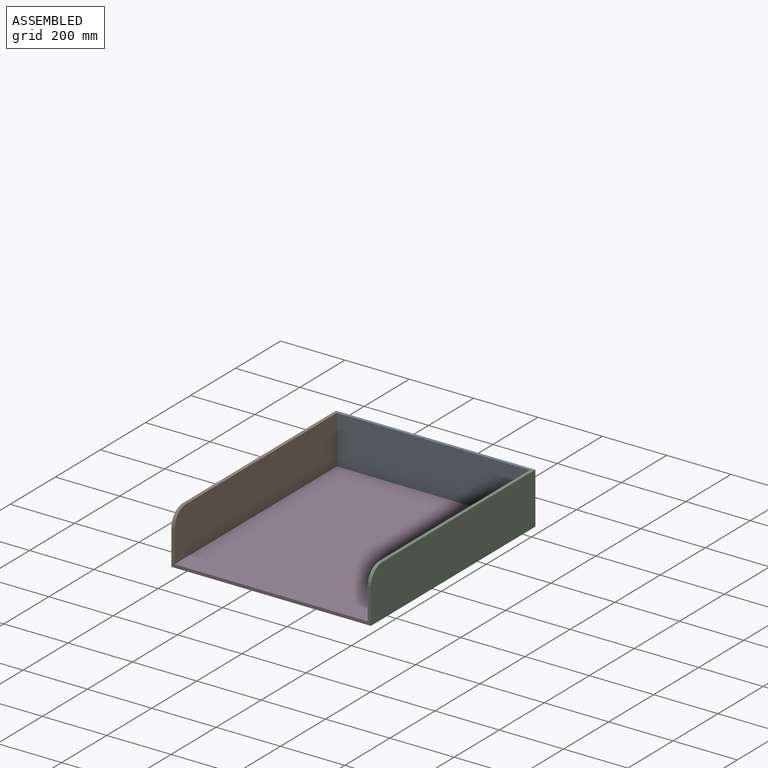
[diagram: assembled view]
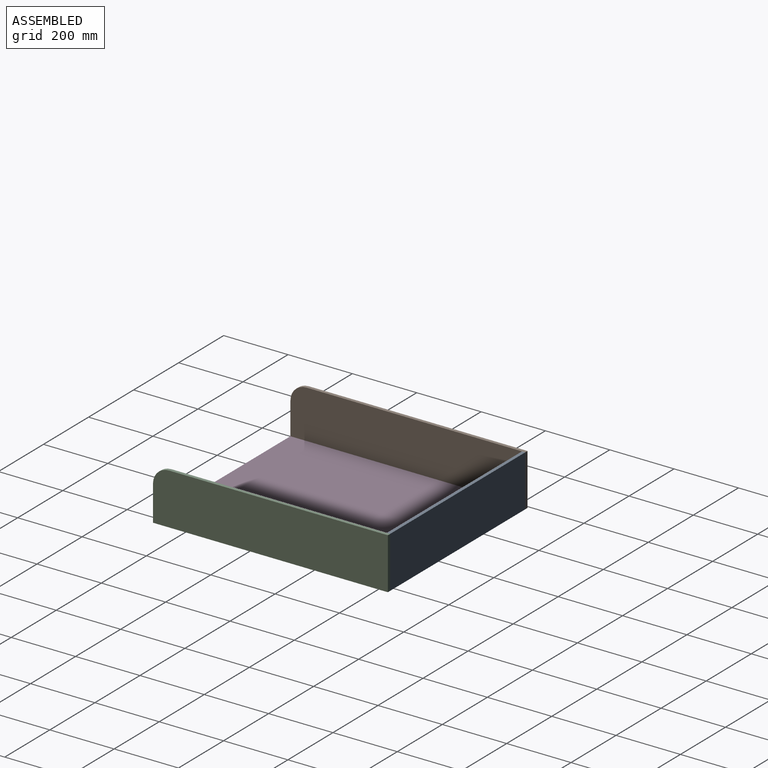
[diagram: assembled view, second angle]
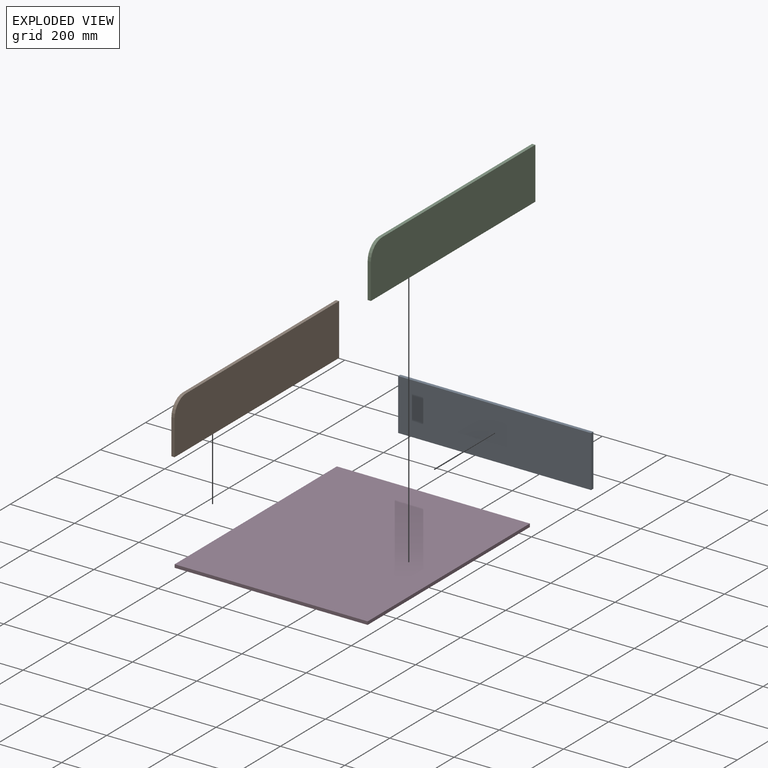
[diagram: exploded view]
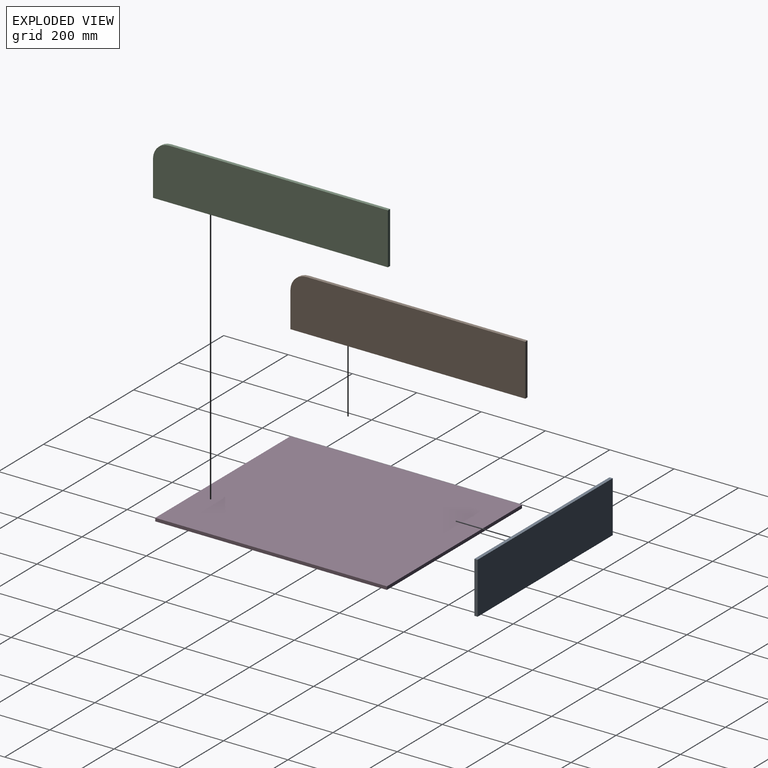
[diagram: exploded view, second angle]
ASSEMBLY  parts=4 mates=3
PART A: 6 faces, bbox 600x10x160 mm
  f0: plane 160x10mm, normal (-1,0,0), area 1600mm2, adj f1,f3,f4,f5
  f1: plane 600x10mm, normal (0,0,-1), area 6000mm2, adj f0,f2,f4,f5
  f2: plane 160x10mm, normal (1,0,0), area 1600mm2, adj f1,f3,f4,f5
  f3: plane 600x10mm, normal (0,0,1), area 6000mm2, adj f0,f2,f4,f5
  f4: plane 600x160mm, normal (0,-1,0), area 96000mm2, adj f0,f1,f2,f3
  f5: plane 600x160mm, normal (0,1,0), area 96000mm2, adj f0,f1,f2,f3
PART B: 7 faces, bbox 10x730x160 mm
  f0: plane 680x10mm, normal (0,0,1), area 6800mm2, adj f3,f4,f5,f6
  f1: plane 110x10mm, normal (0,-1,0), area 1100mm2, adj f2,f4,f5,f6
  f2: plane 730x10mm, normal (0,0,-1), area 7300mm2, adj f1,f3,f4,f5
  f3: plane 160x10mm, normal (0,1,0), area 1600mm2, adj f0,f2,f4,f5
  f4: plane 730x160mm, normal (1,0,0), area 116263.5mm2, adj f0,f1,f2,f3,f6
  f5: plane 730x160mm, normal (-1,0,0), area 116263.5mm2, adj f0,f1,f2,f3,f6
  f6: cylinder r=50mm len=50mm, axis (-1,0,0), area 785.4mm2, adj f0,f1,f4,f5
PART C: same geometry as B
PART D: 6 faces, bbox 600x720x10 mm
  f0: plane 600x10mm, normal (0,1,0), area 6000mm2, adj f1,f3,f4,f5
  f1: plane 720x10mm, normal (-1,0,0), area 7200mm2, adj f0,f2,f4,f5
  f2: plane 600x10mm, normal (0,-1,0), area 6000mm2, adj f1,f3,f4,f5
  f3: plane 720x10mm, normal (1,0,0), area 7200mm2, adj f0,f2,f4,f5
  f4: plane 720x600mm, normal (0,0,1), area 432000mm2, adj f0,f1,f2,f3
  f5: plane 720x600mm, normal (0,0,-1), area 432000mm2, adj f0,f1,f2,f3
PLACE A t=(3.16,370,80)mm
PLACE B t=(-306.84,5,80)mm
PLACE C t=(303.16,5,80)mm
PLACE D at identity
MATE fastened C.f2 <-> D.f5  axis (0,0,1) through (303.16,-360,0)mm
MATE fastened A.f1 <-> B.f2  axis (0,0,1) through (-296.84,370,0)mm
MATE fastened B.f2 <-> D.f5  axis (0,0,1) through (-296.84,-360,0)mm
